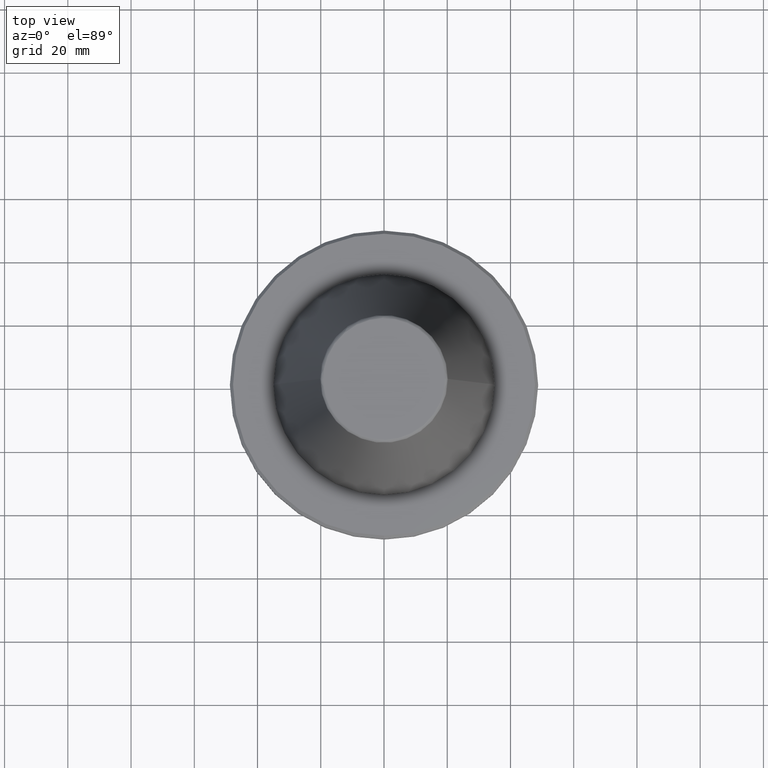
[diagram: clean part render]
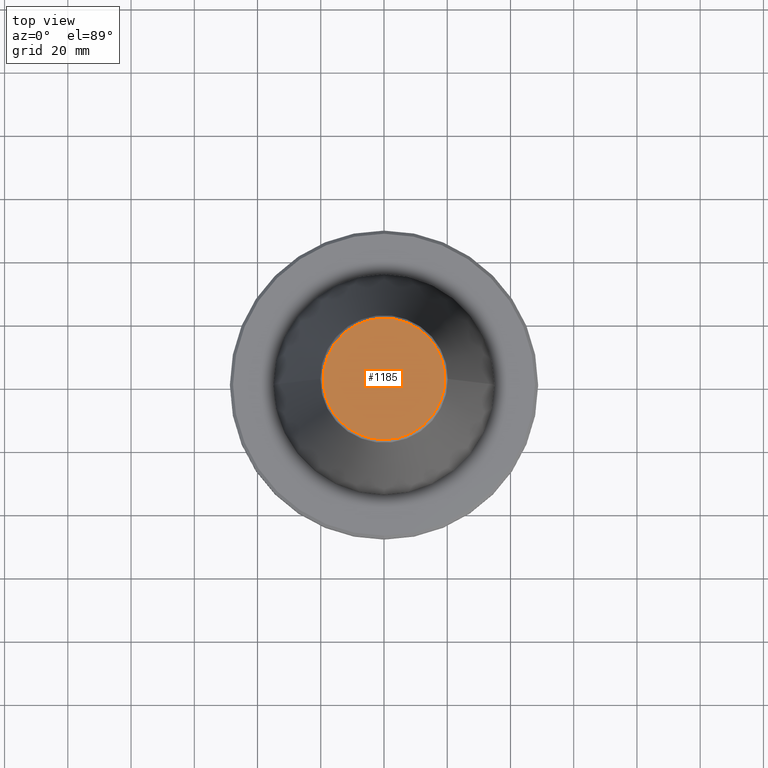
[diagram: same view with one face highlighted and labeled with its STEP entity id]
A machine part, top view. The second image highlights one B-rep face of the part: STEP entity #1185.
In plain terms, the highlighted planar face has unit normal (0, 0, 1).
Its self-contained STEP definition (entity closure, byte-faithful):
#147 = CARTESIAN_POINT ( 'NONE',  ( -19.22157499686001400, 0.0000000000000000000, 101.7499999998288900 ) ) ;
#291 = PLANE ( 'NONE',  #1741 ) ;
#530 = CARTESIAN_POINT ( 'NONE',  ( 19.22157499686001400, 0.0000000000000000000, 101.7499999998288900 ) ) ;
#537 = CARTESIAN_POINT ( 'NONE',  ( 19.22157499683660500, 38.44314999382867600, 101.7499999997148400 ) ) ;
#583 = DIRECTION ( 'NONE',  ( 1.000000000000000000, 0.0000000000000000000, -0.0000000000000000000 ) ) ;
#592 = CARTESIAN_POINT ( 'NONE',  ( -19.22157499683660500, 38.44314999382867600, 101.7499999997148400 ) ) ;
#631 = CARTESIAN_POINT ( 'NONE',  ( 19.22157499686001400, 0.0000000000000000000, 101.7499999998288900 ) ) ;
#633 = CARTESIAN_POINT ( 'NONE',  ( -19.22157499686001400, 0.0000000000000000000, 101.7499999998288900 ) ) ;
#1008 = VERTEX_POINT ( 'NONE', #147 ) ;
#1185 = ADVANCED_FACE ( 'NONE', ( #1587 ), #291, .T. ) ;
#1195 = CARTESIAN_POINT ( 'NONE',  ( -19.22157499686001400, 0.0000000000000000000, 101.7499999998288900 ) ) ;
#1200 = CARTESIAN_POINT ( 'NONE',  ( -19.22157499683660100, -38.44314999382867600, 101.7499999997147700 ) ) ;
#1214 = CARTESIAN_POINT ( 'NONE',  ( 19.22157499686001400, 0.0000000000000000000, 101.7499999998288900 ) ) ;
#1218 = CARTESIAN_POINT ( 'NONE',  ( 19.22157499683660100, -38.44314999382867600, 101.7499999997147700 ) ) ;
#1297 = CARTESIAN_POINT ( 'NONE',  ( -19.45223390099999600, -19.45223390099999600, 101.7500000000000000 ) ) ;
#1333 = VERTEX_POINT ( 'NONE', #631 ) ;
#1587 = FACE_OUTER_BOUND ( 'NONE', #2186, .T. ) ;
#1741 = AXIS2_PLACEMENT_3D ( 'NONE', #1297, #2086, #583 ) ;
#1752 = ORIENTED_EDGE ( 'NONE', *, *, #2066, .F. ) ;
#1767 = ORIENTED_EDGE ( 'NONE', *, *, #1914, .F. ) ;
#1914 = EDGE_CURVE ( 'NONE', #1333, #1008, #2289, .T. ) ;
#2066 = EDGE_CURVE ( 'NONE', #1008, #1333, #2459, .T. ) ;
#2086 = DIRECTION ( 'NONE',  ( 0.0000000000000000000, 0.0000000000000000000, 1.000000000000000000 ) ) ;
#2186 = EDGE_LOOP ( 'NONE', ( #1752, #1767 ) ) ;
#2289 =( BOUNDED_CURVE ( )  B_SPLINE_CURVE ( 3, ( #1214, #1218, #1200, #1195 ),
 .UNSPECIFIED., .F., .F. ) 
 B_SPLINE_CURVE_WITH_KNOTS ( ( 4, 4 ),
 ( 0.0000000000000000000, 1.000000000000000000 ),
 .UNSPECIFIED. ) 
 CURVE ( )  GEOMETRIC_REPRESENTATION_ITEM ( )  RATIONAL_B_SPLINE_CURVE ( ( 0.9606698270091379400, 0.3202232756697125400, 0.3202232756697125400, 0.9606698270091379400 ) ) 
 REPRESENTATION_ITEM ( '' )  );
#2459 =( BOUNDED_CURVE ( )  B_SPLINE_CURVE ( 3, ( #633, #592, #537, #530 ),
 .UNSPECIFIED., .F., .T. ) 
 B_SPLINE_CURVE_WITH_KNOTS ( ( 4, 4 ),
 ( 0.0000000000000000000, 1.000000000000000000 ),
 .UNSPECIFIED. ) 
 CURVE ( )  GEOMETRIC_REPRESENTATION_ITEM ( )  RATIONAL_B_SPLINE_CURVE ( ( 0.9606698270091375000, 0.3202232756697123200, 0.3202232756697123200, 0.9606698270091375000 ) ) 
 REPRESENTATION_ITEM ( '' )  );